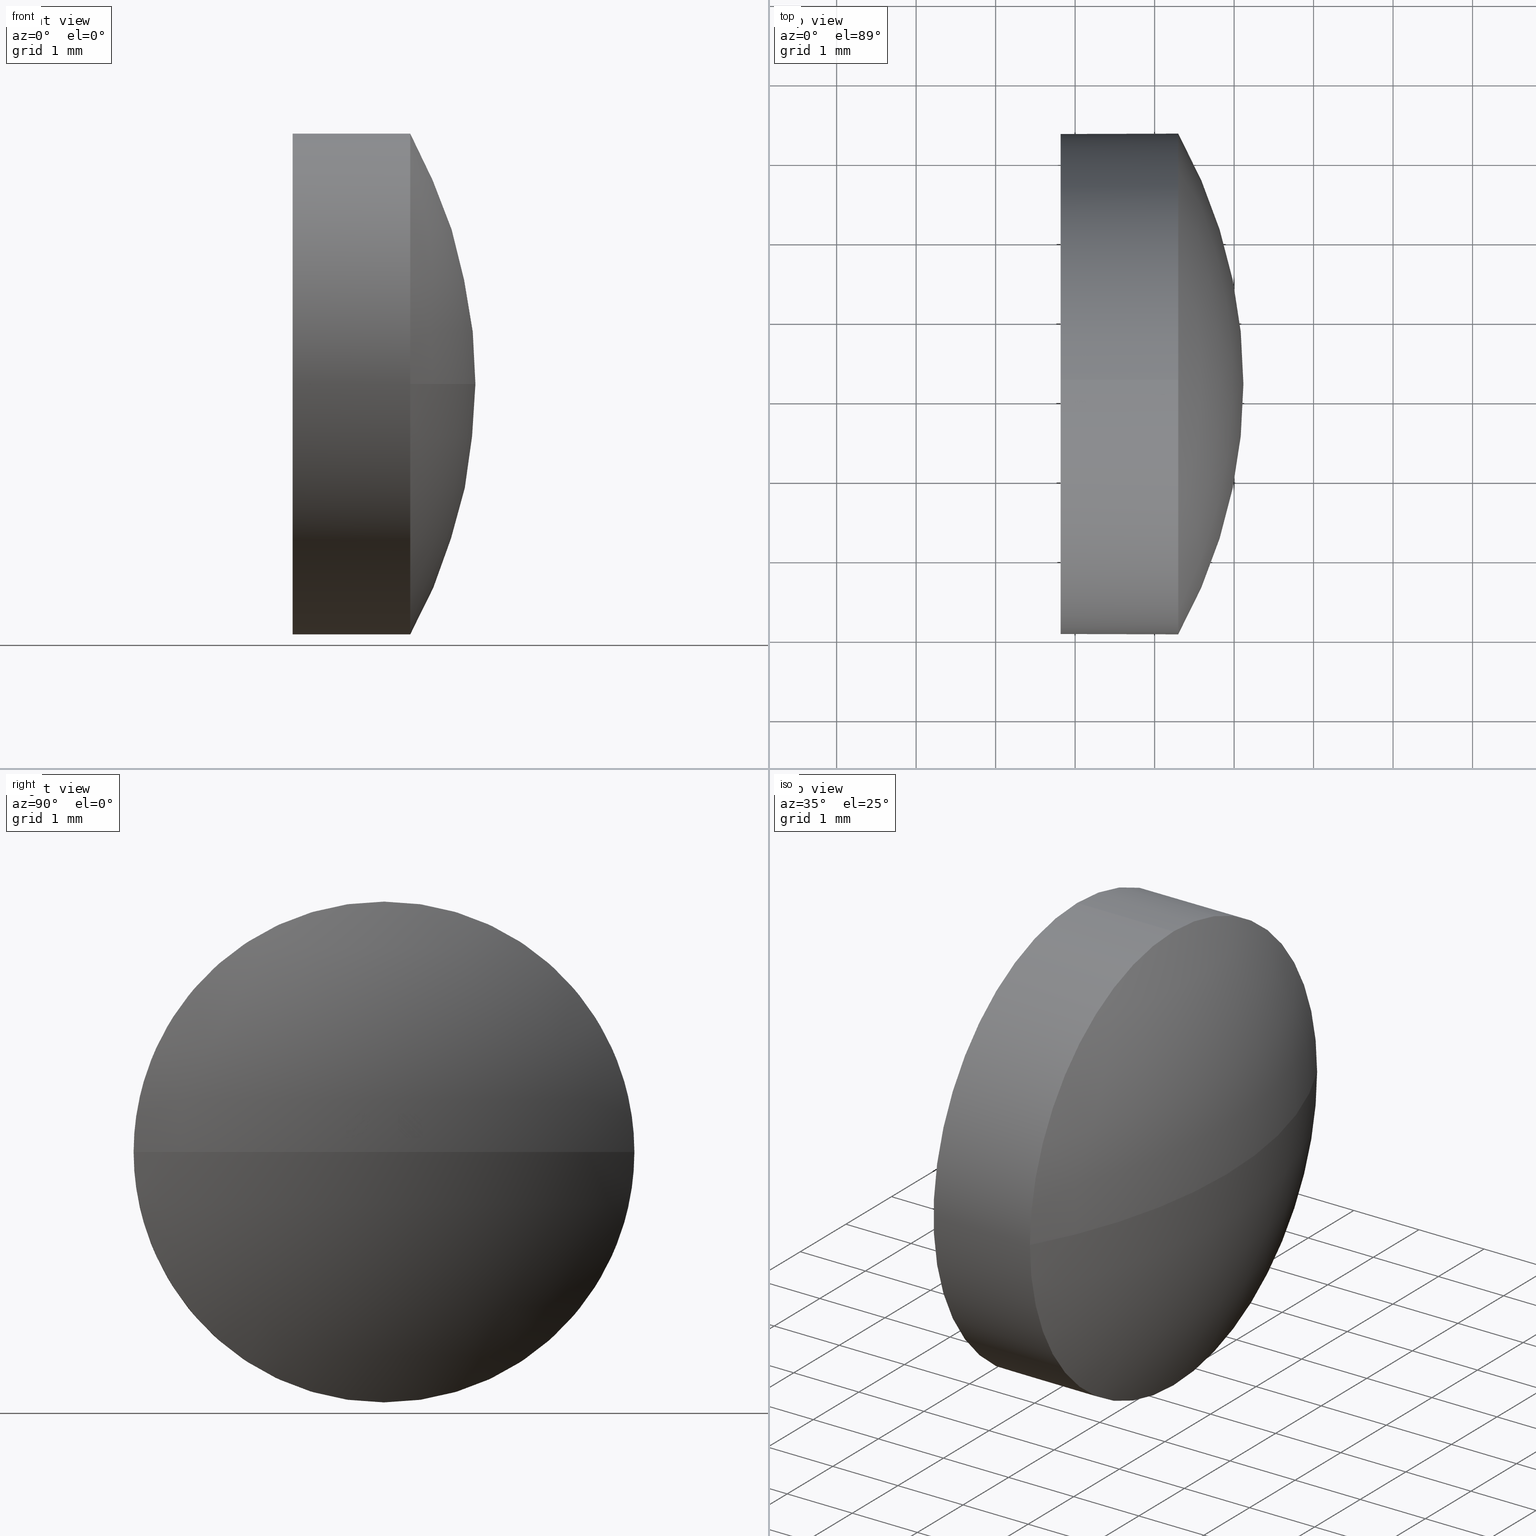
[diagram: canonical four-view strip — front | top / right | iso, engineering-drawing reading convention]
A machine part, canonical four-view strip (front | top / right | iso — engineering-drawing reading convention). The complete STEP part file that produces these views, byte-faithful:
ISO-10303-21;
HEADER;
FILE_DESCRIPTION (( 'STEP AP214' ),
    '1' );
FILE_NAME ('100180.STEP',
    '2019-05-21T02:20:27',
    ( '' ),
    ( '' ),
    'SwSTEP 2.0',
    'SolidWorks 2016',
    '' );
FILE_SCHEMA (( 'AUTOMOTIVE_DESIGN' ));
ENDSEC;

DATA;
#1 = FILL_AREA_STYLE ('',( #159 ) ) ;
#2 = APPLICATION_PROTOCOL_DEFINITION ( 'draft international standard', 'automotive_design', 1998, #171 ) ;
#3 = COLOUR_RGB ( '',1.000000000000000000, 1.000000000000000000, 1.000000000000000000 ) ;
#4 =( NAMED_UNIT ( * ) PLANE_ANGLE_UNIT ( ) SI_UNIT ( $, .RADIAN. ) );
#5 = EDGE_CURVE ( 'NONE', #141, #179, #73, .T. ) ;
#6 = ORIENTED_EDGE ( 'NONE', *, *, #165, .T. ) ;
#7 = ADVANCED_FACE ( 'NONE', ( #147 ), #69, .T. ) ;
#8 = ORIENTED_EDGE ( 'NONE', *, *, #123, .F. ) ;
#9 = CYLINDRICAL_SURFACE ( 'NONE', #89, 3.150000000000003500 ) ;
#10 = ORIENTED_EDGE ( 'NONE', *, *, #36, .T. ) ;
#11 = PRODUCT_DEFINITION_CONTEXT ( 'detailed design', #171, 'design' ) ;
#12 = CARTESIAN_POINT ( 'NONE',  ( 452.8172646101707000, 11.19250467615683000, 0.0000000000000000000 ) ) ;
#13 = AXIS2_PLACEMENT_3D ( 'NONE', #85, #31, #20 ) ;
#14 = CIRCLE ( 'NONE', #174, 3.150000000000003500 ) ;
#15 = CLOSED_SHELL ( 'NONE', ( #176, #107, #62, #7, #51 ) ) ;
#16 = DIRECTION ( 'NONE',  ( 0.0000000000000000000, 0.0000000000000000000, 1.000000000000000000 ) ) ;
#17 = ORIENTED_EDGE ( 'NONE', *, *, #5, .T. ) ;
#18 =( NAMED_UNIT ( * ) SI_UNIT ( $, .STERADIAN. ) SOLID_ANGLE_UNIT ( ) );
#19 =( LENGTH_UNIT ( ) NAMED_UNIT ( * ) SI_UNIT ( .MILLI., .METRE. ) );
#20 = DIRECTION ( 'NONE',  ( 0.0000000000000000000, 1.000000000000000000, 0.0000000000000000000 ) ) ;
#21 = SURFACE_STYLE_FILL_AREA ( #82 ) ;
#22 = ORIENTED_EDGE ( 'NONE', *, *, #126, .T. ) ;
#23 = EDGE_CURVE ( 'NONE', #99, #98, #93, .T. ) ;
#24 = ORIENTED_EDGE ( 'NONE', *, *, #91, .F. ) ;
#25 =( GEOMETRIC_REPRESENTATION_CONTEXT ( 3 ) GLOBAL_UNCERTAINTY_ASSIGNED_CONTEXT ( ( #41 ) ) GLOBAL_UNIT_ASSIGNED_CONTEXT ( ( #19, #121, #160 ) ) REPRESENTATION_CONTEXT ( 'NONE', 'WORKASPACE' ) );
#26 = ORIENTED_EDGE ( 'NONE', *, *, #30, .T. ) ;
#27 = DIRECTION ( 'NONE',  ( -1.000000000000000000, -0.0000000000000000000, -0.0000000000000000000 ) ) ;
#28 = DIRECTION ( 'NONE',  ( -1.000000000000000000, -0.0000000000000000000, -0.0000000000000000000 ) ) ;
#29 = PRODUCT_CONTEXT ( 'NONE', #72, 'mechanical' ) ;
#30 = EDGE_CURVE ( 'NONE', #98, #179, #94, .T. ) ;
#31 = DIRECTION ( 'NONE',  ( -0.0000000000000000000, 0.0000000000000000000, -1.000000000000000000 ) ) ;
#32 = DIRECTION ( 'NONE',  ( -1.000000000000000000, -0.0000000000000000000, -0.0000000000000000000 ) ) ;
#33 = CARTESIAN_POINT ( 'NONE',  ( 0.0000000000000000000, 0.0000000000000000000, 0.0000000000000000000 ) ) ;
#34 = ADVANCED_BREP_SHAPE_REPRESENTATION ( '100180', ( #70, #155 ), #95 ) ;
#35 =( GEOMETRIC_REPRESENTATION_CONTEXT ( 3 ) GLOBAL_UNCERTAINTY_ASSIGNED_CONTEXT ( ( #38 ) ) GLOBAL_UNIT_ASSIGNED_CONTEXT ( ( #102, #4, #18 ) ) REPRESENTATION_CONTEXT ( 'NONE', 'WORKASPACE' ) );
#36 = EDGE_CURVE ( 'NONE', #98, #124, #105, .T. ) ;
#37 = ORIENTED_EDGE ( 'NONE', *, *, #123, .T. ) ;
#38 = UNCERTAINTY_MEASURE_WITH_UNIT (LENGTH_MEASURE( 1.000000000000000100E-005 ), #102, 'distance_accuracy_value', 'NONE');
#39 = DIRECTION ( 'NONE',  ( 0.0000000000000000000, 0.0000000000000000000, 1.000000000000000000 ) ) ;
#40 = AXIS2_PLACEMENT_3D ( 'NONE', #50, #32, #173 ) ;
#41 = UNCERTAINTY_MEASURE_WITH_UNIT (LENGTH_MEASURE( 1.000000000000000100E-005 ), #19, 'distance_accuracy_value', 'NONE');
#42 = DIRECTION ( 'NONE',  ( 0.0000000000000000000, 0.0000000000000000000, 1.000000000000000000 ) ) ;
#43 = CARTESIAN_POINT ( 'NONE',  ( 452.8172646101707000, 11.19250467615683000, -3.150000000000003500 ) ) ;
#44 = PRODUCT_DEFINITION_FORMATION_WITH_SPECIFIED_SOURCE ( '�κ�', '', #79, .NOT_KNOWN. ) ;
#45 = ORIENTED_EDGE ( 'NONE', *, *, #126, .F. ) ;
#46 = CARTESIAN_POINT ( 'NONE',  ( 454.2972646101707100, 14.34250467615682500, 0.0000000000000000000 ) ) ;
#47 = CARTESIAN_POINT ( 'NONE',  ( 455.1172646101707100, 11.19250467615680300, 0.0000000000000000000 ) ) ;
#48 = EDGE_CURVE ( 'NONE', #179, #152, #14, .T. ) ;
#49 = DIRECTION ( 'NONE',  ( 0.0000000000000000000, 1.000000000000000000, 0.0000000000000000000 ) ) ;
#50 = CARTESIAN_POINT ( 'NONE',  ( 452.8172646101707000, 11.19250467615683000, 0.0000000000000000000 ) ) ;
#51 = ADVANCED_FACE ( 'NONE', ( #55 ), #129, .F. ) ;
#52 = SPHERICAL_SURFACE ( 'NONE', #78, 6.460304878048838800 ) ;
#53 = AXIS2_PLACEMENT_3D ( 'NONE', #148, #149, #104 ) ;
#54 = ORIENTED_EDGE ( 'NONE', *, *, #48, .F. ) ;
#55 = FACE_OUTER_BOUND ( 'NONE', #128, .T. ) ;
#56 = ORIENTED_EDGE ( 'NONE', *, *, #140, .F. ) ;
#57 = CARTESIAN_POINT ( 'NONE',  ( 452.0115541976288100, 11.19250467615683000, -3.150000000000003500 ) ) ;
#58 = VERTEX_POINT ( 'NONE', #103 ) ;
#59 = DIRECTION ( 'NONE',  ( -1.000000000000000000, -0.0000000000000000000, -0.0000000000000000000 ) ) ;
#60 = CARTESIAN_POINT ( 'NONE',  ( 454.2972646101707100, 11.19250467615683000, -3.150000000000003500 ) ) ;
#61 = CARTESIAN_POINT ( 'NONE',  ( 452.0115541976288100, 11.19250467615683000, 0.0000000000000000000 ) ) ;
#62 = ADVANCED_FACE ( 'NONE', ( #127 ), #77, .T. ) ;
#63 = CIRCLE ( 'NONE', #125, 3.150000000000003500 ) ;
#64 = DIRECTION ( 'NONE',  ( -1.000000000000000000, -0.0000000000000000000, -0.0000000000000000000 ) ) ;
#65 = AXIS2_PLACEMENT_3D ( 'NONE', #186, #64, #120 ) ;
#66 = ORIENTED_EDGE ( 'NONE', *, *, #48, .T. ) ;
#67 = AXIS2_PLACEMENT_3D ( 'NONE', #113, #28, #42 ) ;
#68 = COLOUR_RGB ( '',1.000000000000000000, 1.000000000000000000, 1.000000000000000000 ) ;
#69 = CYLINDRICAL_SURFACE ( 'NONE', #154, 3.150000000000003500 ) ;
#70 = MANIFOLD_SOLID_BREP ( '��ת1', #15 ) ;
#71 = DIRECTION ( 'NONE',  ( 0.0000000000000000000, 1.000000000000000000, 1.224646799147353200E-016 ) ) ;
#72 = APPLICATION_CONTEXT ( 'automotive_design' ) ;
#73 = CIRCLE ( 'NONE', #145, 6.460304878048838800 ) ;
#74 =( NAMED_UNIT ( * ) PLANE_ANGLE_UNIT ( ) SI_UNIT ( $, .RADIAN. ) );
#75 = DIRECTION ( 'NONE',  ( 0.0000000000000000000, 0.0000000000000000000, 1.000000000000000000 ) ) ;
#76 = CARTESIAN_POINT ( 'NONE',  ( 454.2972646101707100, 11.19250467615683000, 3.150000000000003500 ) ) ;
#77 = SPHERICAL_SURFACE ( 'NONE', #13, 6.460304878048838800 ) ;
#78 = AXIS2_PLACEMENT_3D ( 'NONE', #175, #87, #49 ) ;
#79 = PRODUCT ( '100180', '100180', '', ( #29 ) ) ;
#80 = PRESENTATION_STYLE_ASSIGNMENT (( #122 ) ) ;
#81 = DIRECTION ( 'NONE',  ( 0.0000000000000000000, 1.224646799147353200E-016, -1.000000000000000000 ) ) ;
#82 = FILL_AREA_STYLE ('',( #184 ) ) ;
#83 = FACE_OUTER_BOUND ( 'NONE', #131, .T. ) ;
#84 = ORIENTED_EDGE ( 'NONE', *, *, #5, .F. ) ;
#85 = CARTESIAN_POINT ( 'NONE',  ( 448.6569597321218900, 11.19250467615680300, 0.0000000000000000000 ) ) ;
#86 = DIRECTION ( 'NONE',  ( 0.0000000000000000000, 0.0000000000000000000, -1.000000000000000000 ) ) ;
#87 = DIRECTION ( 'NONE',  ( -0.0000000000000000000, 0.0000000000000000000, -1.000000000000000000 ) ) ;
#88 = VECTOR ( 'NONE', #181, 1000.000000000000000 ) ;
#89 = AXIS2_PLACEMENT_3D ( 'NONE', #61, #158, #16 ) ;
#90 = ORIENTED_EDGE ( 'NONE', *, *, #30, .F. ) ;
#91 = EDGE_CURVE ( 'NONE', #58, #124, #63, .T. ) ;
#92 = SURFACE_STYLE_FILL_AREA ( #1 ) ;
#93 = CIRCLE ( 'NONE', #67, 3.150000000000003500 ) ;
#94 = CIRCLE ( 'NONE', #111, 3.150000000000003500 ) ;
#95 =( GEOMETRIC_REPRESENTATION_CONTEXT ( 3 ) GLOBAL_UNCERTAINTY_ASSIGNED_CONTEXT ( ( #167 ) ) GLOBAL_UNIT_ASSIGNED_CONTEXT ( ( #114, #74, #106 ) ) REPRESENTATION_CONTEXT ( 'NONE', 'WORKASPACE' ) );
#96 = CARTESIAN_POINT ( 'NONE',  ( 448.6569597321218900, 11.19250467615680300, 0.0000000000000000000 ) ) ;
#97 = STYLED_ITEM ( 'NONE', ( #80 ), #34 ) ;
#98 = VERTEX_POINT ( 'NONE', #60 ) ;
#99 = VERTEX_POINT ( 'NONE', #46 ) ;
#100 = APPLICATION_PROTOCOL_DEFINITION ( 'draft international standard', 'automotive_design', 1998, #72 ) ;
#101 = CARTESIAN_POINT ( 'NONE',  ( 454.2972646101707100, 11.19250467615683000, 0.0000000000000000000 ) ) ;
#102 =( LENGTH_UNIT ( ) NAMED_UNIT ( * ) SI_UNIT ( .MILLI., .METRE. ) );
#103 = CARTESIAN_POINT ( 'NONE',  ( 452.8172646101707000, 11.19250467615683000, 3.150000000000003500 ) ) ;
#104 = DIRECTION ( 'NONE',  ( 1.000000000000000000, 0.0000000000000000000, 0.0000000000000000000 ) ) ;
#105 = LINE ( 'NONE', #57, #88 ) ;
#106 =( NAMED_UNIT ( * ) SI_UNIT ( $, .STERADIAN. ) SOLID_ANGLE_UNIT ( ) );
#107 = ADVANCED_FACE ( 'NONE', ( #163 ), #52, .T. ) ;
#108 = CIRCLE ( 'NONE', #40, 3.150000000000003500 ) ;
#109 = ORIENTED_EDGE ( 'NONE', *, *, #23, .F. ) ;
#110 = PRESENTATION_LAYER_ASSIGNMENT (  '', '', ( #97 ) ) ;
#111 = AXIS2_PLACEMENT_3D ( 'NONE', #101, #59, #39 ) ;
#112 = EDGE_LOOP ( 'NONE', ( #56, #17, #90, #109 ) ) ;
#113 = CARTESIAN_POINT ( 'NONE',  ( 454.2972646101707100, 11.19250467615683000, 0.0000000000000000000 ) ) ;
#114 =( LENGTH_UNIT ( ) NAMED_UNIT ( * ) SI_UNIT ( .MILLI., .METRE. ) );
#115 = DIRECTION ( 'NONE',  ( 1.000000000000000000, 0.0000000000000000000, 0.0000000000000000000 ) ) ;
#116 = PRODUCT_DEFINITION_SHAPE ( 'NONE', 'NONE',  #157 ) ;
#117 = SURFACE_SIDE_STYLE ('',( #92 ) ) ;
#118 = PRESENTATION_STYLE_ASSIGNMENT (( #146 ) ) ;
#119 = ORIENTED_EDGE ( 'NONE', *, *, #23, .T. ) ;
#120 = DIRECTION ( 'NONE',  ( 0.0000000000000000000, 0.0000000000000000000, 1.000000000000000000 ) ) ;
#121 =( NAMED_UNIT ( * ) PLANE_ANGLE_UNIT ( ) SI_UNIT ( $, .RADIAN. ) );
#122 = SURFACE_STYLE_USAGE ( .BOTH. , #137 ) ;
#123 = EDGE_CURVE ( 'NONE', #152, #58, #177, .T. ) ;
#124 = VERTEX_POINT ( 'NONE', #43 ) ;
#125 = AXIS2_PLACEMENT_3D ( 'NONE', #172, #135, #162 ) ;
#126 = EDGE_CURVE ( 'NONE', #124, #58, #108, .T. ) ;
#127 = FACE_OUTER_BOUND ( 'NONE', #151, .T. ) ;
#128 = EDGE_LOOP ( 'NONE', ( #156, #22 ) ) ;
#129 = PLANE ( 'NONE',  #136 ) ;
#130 = MECHANICAL_DESIGN_GEOMETRIC_PRESENTATION_REPRESENTATION (  '', ( #97 ), #35 ) ;
#131 = EDGE_LOOP ( 'NONE', ( #119, #10, #24, #8, #6 ) ) ;
#132 = CARTESIAN_POINT ( 'NONE',  ( 452.0115541976288100, 11.19250467615683000, 0.0000000000000000000 ) ) ;
#133 = DIRECTION ( 'NONE',  ( -1.000000000000000000, -0.0000000000000000000, -0.0000000000000000000 ) ) ;
#134 = CARTESIAN_POINT ( 'NONE',  ( 452.0115541976288100, 11.19250467615683000, 3.150000000000003500 ) ) ;
#135 = DIRECTION ( 'NONE',  ( -1.000000000000000000, -0.0000000000000000000, -0.0000000000000000000 ) ) ;
#136 = AXIS2_PLACEMENT_3D ( 'NONE', #12, #185, #86 ) ;
#137 = SURFACE_SIDE_STYLE ('',( #21 ) ) ;
#138 = EDGE_LOOP ( 'NONE', ( #164, #26, #66, #37, #45 ) ) ;
#139 = CIRCLE ( 'NONE', #53, 6.460304878048828100 ) ;
#140 = EDGE_CURVE ( 'NONE', #141, #99, #139, .T. ) ;
#141 = VERTEX_POINT ( 'NONE', #47 ) ;
#142 = CIRCLE ( 'NONE', #65, 3.150000000000003500 ) ;
#143 = STYLED_ITEM ( 'NONE', ( #118 ), #70 ) ;
#144 = DIRECTION ( 'NONE',  ( -1.000000000000000000, -0.0000000000000000000, -0.0000000000000000000 ) ) ;
#145 = AXIS2_PLACEMENT_3D ( 'NONE', #96, #81, #71 ) ;
#146 = SURFACE_STYLE_USAGE ( .BOTH. , #117 ) ;
#147 = FACE_OUTER_BOUND ( 'NONE', #138, .T. ) ;
#148 = CARTESIAN_POINT ( 'NONE',  ( 448.6569597321218900, 11.19250467615680300, 0.0000000000000000000 ) ) ;
#149 = DIRECTION ( 'NONE',  ( -0.0000000000000000000, 0.0000000000000000000, 1.000000000000000000 ) ) ;
#150 = SHAPE_DEFINITION_REPRESENTATION ( #116, #34 ) ;
#151 = EDGE_LOOP ( 'NONE', ( #84, #168, #166, #54 ) ) ;
#152 = VERTEX_POINT ( 'NONE', #76 ) ;
#153 = PRESENTATION_LAYER_ASSIGNMENT (  '', '', ( #143 ) ) ;
#154 = AXIS2_PLACEMENT_3D ( 'NONE', #132, #144, #182 ) ;
#155 = AXIS2_PLACEMENT_3D ( 'NONE', #33, #75, #115 ) ;
#156 = ORIENTED_EDGE ( 'NONE', *, *, #91, .T. ) ;
#157 = PRODUCT_DEFINITION ( 'δ֪', '', #44, #11 ) ;
#158 = DIRECTION ( 'NONE',  ( -1.000000000000000000, -0.0000000000000000000, -0.0000000000000000000 ) ) ;
#159 = FILL_AREA_STYLE_COLOUR ( '', #68 ) ;
#160 =( NAMED_UNIT ( * ) SI_UNIT ( $, .STERADIAN. ) SOLID_ANGLE_UNIT ( ) );
#161 = MECHANICAL_DESIGN_GEOMETRIC_PRESENTATION_REPRESENTATION (  '', ( #143 ), #25 ) ;
#162 = DIRECTION ( 'NONE',  ( 0.0000000000000000000, 0.0000000000000000000, 1.000000000000000000 ) ) ;
#163 = FACE_OUTER_BOUND ( 'NONE', #112, .T. ) ;
#164 = ORIENTED_EDGE ( 'NONE', *, *, #36, .F. ) ;
#165 = EDGE_CURVE ( 'NONE', #152, #99, #142, .T. ) ;
#166 = ORIENTED_EDGE ( 'NONE', *, *, #165, .F. ) ;
#167 = UNCERTAINTY_MEASURE_WITH_UNIT (LENGTH_MEASURE( 1.000000000000000100E-005 ), #114, 'distance_accuracy_value', 'NONE');
#168 = ORIENTED_EDGE ( 'NONE', *, *, #140, .T. ) ;
#169 = VECTOR ( 'NONE', #133, 1000.000000000000000 ) ;
#170 = CARTESIAN_POINT ( 'NONE',  ( 454.2972646101707100, 11.19250467615683000, 0.0000000000000000000 ) ) ;
#171 = APPLICATION_CONTEXT ( 'automotive_design' ) ;
#172 = CARTESIAN_POINT ( 'NONE',  ( 452.8172646101707000, 11.19250467615683000, 0.0000000000000000000 ) ) ;
#173 = DIRECTION ( 'NONE',  ( 0.0000000000000000000, 0.0000000000000000000, 1.000000000000000000 ) ) ;
#174 = AXIS2_PLACEMENT_3D ( 'NONE', #170, #27, #180 ) ;
#175 = CARTESIAN_POINT ( 'NONE',  ( 448.6569597321218900, 11.19250467615680300, 0.0000000000000000000 ) ) ;
#176 = ADVANCED_FACE ( 'NONE', ( #83 ), #9, .T. ) ;
#177 = LINE ( 'NONE', #134, #169 ) ;
#178 = CARTESIAN_POINT ( 'NONE',  ( 454.2972646101707100, 8.042504676156809800, -3.857637417314155300E-016 ) ) ;
#179 = VERTEX_POINT ( 'NONE', #178 ) ;
#180 = DIRECTION ( 'NONE',  ( 0.0000000000000000000, 0.0000000000000000000, 1.000000000000000000 ) ) ;
#181 = DIRECTION ( 'NONE',  ( -1.000000000000000000, -0.0000000000000000000, -0.0000000000000000000 ) ) ;
#182 = DIRECTION ( 'NONE',  ( 0.0000000000000000000, 0.0000000000000000000, 1.000000000000000000 ) ) ;
#183 = PRODUCT_RELATED_PRODUCT_CATEGORY ( 'part', '', ( #79 ) ) ;
#184 = FILL_AREA_STYLE_COLOUR ( '', #3 ) ;
#185 = DIRECTION ( 'NONE',  ( 1.000000000000000000, 0.0000000000000000000, 0.0000000000000000000 ) ) ;
#186 = CARTESIAN_POINT ( 'NONE',  ( 454.2972646101707100, 11.19250467615683000, 0.0000000000000000000 ) ) ;
ENDSEC;
END-ISO-10303-21;
